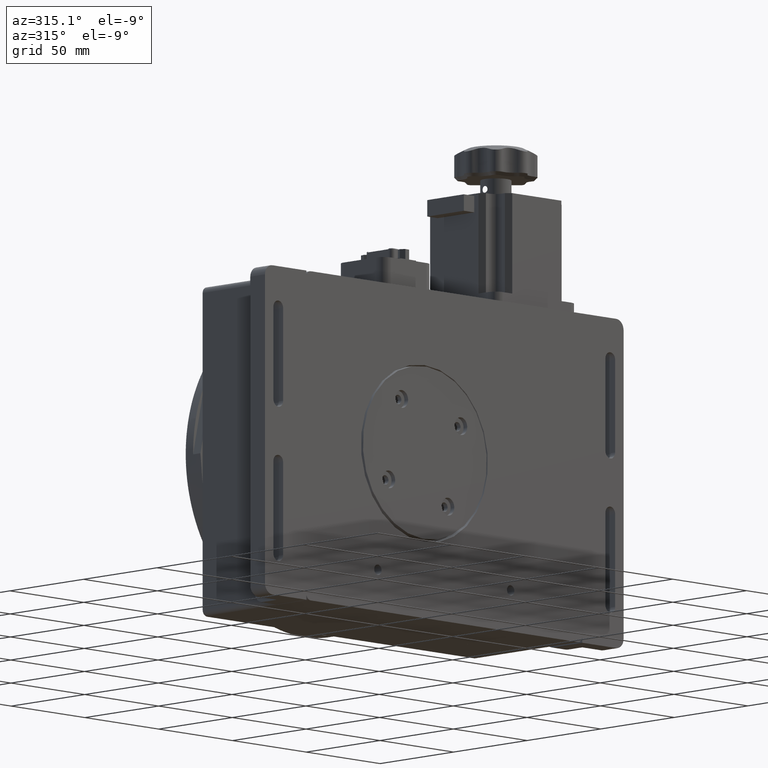
[diagram: clean part render]
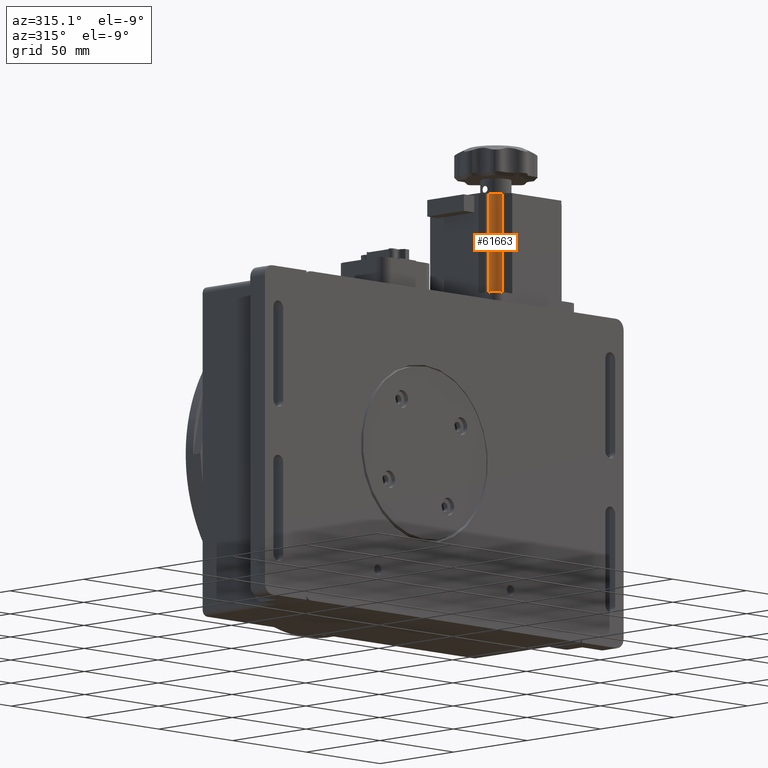
[diagram: same view with one face highlighted and labeled with its STEP entity id]
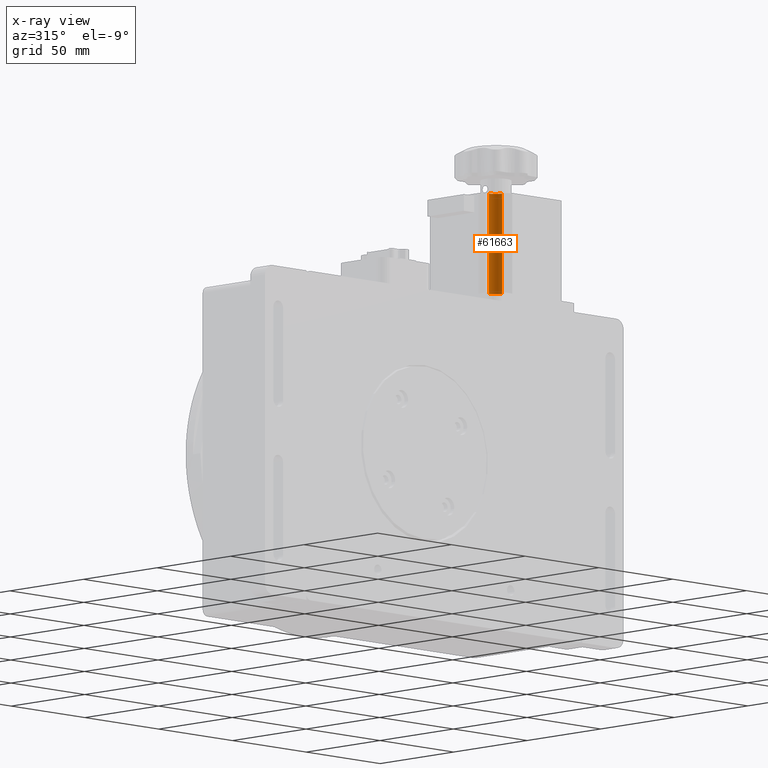
[diagram: x-ray of the same camera — body ghosted, the highlighted face saturated]
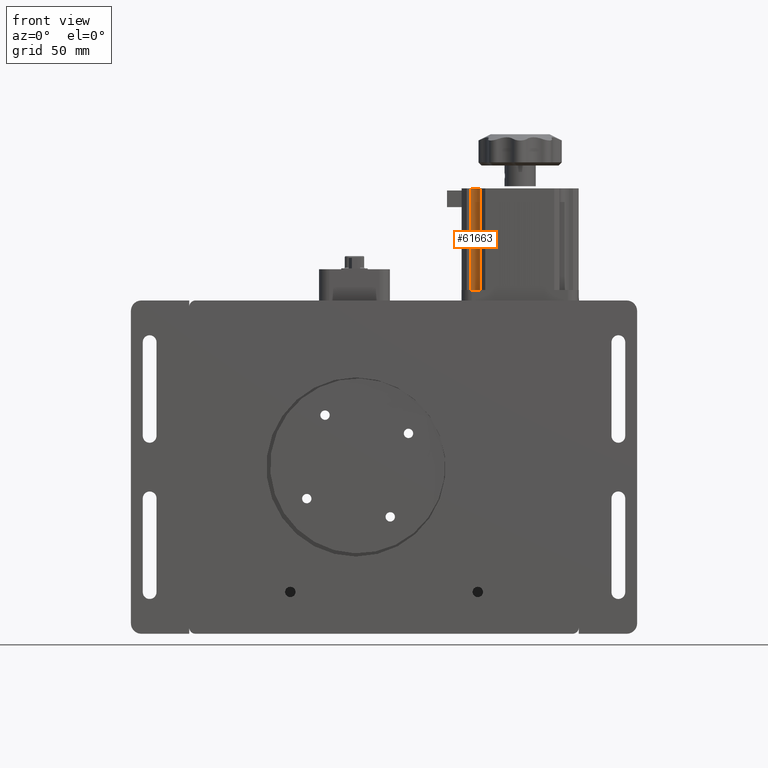
[diagram: same view with one face highlighted and labeled with its STEP entity id]
A machine part, auxiliary view. The second image highlights one B-rep face of the part: STEP entity #61663.
The next image is the same camera in x-ray: the body ghosted, the highlighted face saturated — about 0% of this face is hidden behind the body in this view.
A second angle (front view) of the same face is appended — the face is thin or edge-on in the first view.
In plain terms, the highlighted cylindrical surface (edge-blend (fillet) strip) has radius 4.5 mm, axis along (-0, 0, -1).
Its self-contained STEP definition (entity closure, byte-faithful):
#4035 = CYLINDRICAL_SURFACE ( 'NONE', #71215, 4.500000000000000900 ) ;
#4137 = CARTESIAN_POINT ( 'NONE',  ( 228.6641675121713300, 4.060652173870141500, 133.7999999999999500 ) ) ;
#14401 = EDGE_CURVE ( 'NONE', #19755, #100384, #67500, .T. ) ;
#14990 = VERTEX_POINT ( 'NONE', #4137 ) ;
#18340 = CIRCLE ( 'NONE', #80011, 4.500000000000000900 ) ;
#19158 = CARTESIAN_POINT ( 'NONE',  ( 228.6392789991501500, -0.4392789991501145900, 133.7999999999999500 ) ) ;
#19755 = VERTEX_POINT ( 'NONE', #106458 ) ;
#23094 = CARTESIAN_POINT ( 'NONE',  ( 228.6641675121713300, 4.060652173870141500, 133.7999999999999500 ) ) ;
#24968 = DIRECTION ( 'NONE',  ( -4.032665173805104700E-017, 1.832968605062175000E-016, -1.000000000000000000 ) ) ;
#25306 = DIRECTION ( 'NONE',  ( -0.005530780671404567300, -0.9999847051156156600, 0.0000000000000000000 ) ) ;
#27534 = DIRECTION ( 'NONE',  ( 0.005530780671404567300, 0.9999847051156156600, 0.0000000000000000000 ) ) ;
#28146 = LINE ( 'NONE', #23094, #92188 ) ;
#29718 = CARTESIAN_POINT ( 'NONE',  ( 233.1392101721702900, -0.4641675121714282600, 133.7999999999999500 ) ) ;
#30359 = AXIS2_PLACEMENT_3D ( 'NONE', #36105, #94490, #44462 ) ;
#31066 = DIRECTION ( 'NONE',  ( -4.032665173805104700E-017, 1.832968605062175300E-016, -1.000000000000000000 ) ) ;
#32800 = CARTESIAN_POINT ( 'NONE',  ( 233.1392101721702900, -0.4641675121714282600, 133.7999999999999500 ) ) ;
#36105 = CARTESIAN_POINT ( 'NONE',  ( 228.6392789991501500, -0.4392789991501180900, 85.00000000000000000 ) ) ;
#38725 = ORIENTED_EDGE ( 'NONE', *, *, #57227, .T. ) ;
#44462 = DIRECTION ( 'NONE',  ( 0.005530780671404567300, 0.9999847051156156600, 0.0000000000000000000 ) ) ;
#56362 = FACE_OUTER_BOUND ( 'NONE', #76221, .T. ) ;
#57227 = EDGE_CURVE ( 'NONE', #75027, #14990, #18340, .T. ) ;
#57325 = ORIENTED_EDGE ( 'NONE', *, *, #94194, .T. ) ;
#61663 = ADVANCED_FACE ( 'NONE', ( #56362 ), #4035, .F. ) ;
#62579 = ORIENTED_EDGE ( 'NONE', *, *, #14401, .F. ) ;
#66392 = DIRECTION ( 'NONE',  ( -4.032665173805104700E-017, 1.832968605062175300E-016, -1.000000000000000000 ) ) ;
#67500 = CIRCLE ( 'NONE', #30359, 4.500000000000000900 ) ;
#69786 = VECTOR ( 'NONE', #66392, 1000.000000000000000 ) ;
#71215 = AXIS2_PLACEMENT_3D ( 'NONE', #99426, #24968, #25306 ) ;
#73120 = ORIENTED_EDGE ( 'NONE', *, *, #76248, .F. ) ;
#75027 = VERTEX_POINT ( 'NONE', #29718 ) ;
#76221 = EDGE_LOOP ( 'NONE', ( #62579, #73120, #38725, #57325 ) ) ;
#76248 = EDGE_CURVE ( 'NONE', #75027, #19755, #92012, .T. ) ;
#77587 = DIRECTION ( 'NONE',  ( 4.032665173805104700E-017, -1.832968605062174800E-016, 1.000000000000000000 ) ) ;
#80011 = AXIS2_PLACEMENT_3D ( 'NONE', #19158, #77587, #27534 ) ;
#92012 = LINE ( 'NONE', #32800, #69786 ) ;
#92188 = VECTOR ( 'NONE', #31066, 1000.000000000000000 ) ;
#94194 = EDGE_CURVE ( 'NONE', #14990, #100384, #28146, .T. ) ;
#94490 = DIRECTION ( 'NONE',  ( 4.032665173805104700E-017, -1.832968605062174800E-016, 1.000000000000000000 ) ) ;
#96219 = CARTESIAN_POINT ( 'NONE',  ( 228.6641675121713300, 4.060652173870148700, 85.00000000000000000 ) ) ;
#99426 = CARTESIAN_POINT ( 'NONE',  ( 228.6392789991501500, -0.4392789991501145900, 133.7999999999999500 ) ) ;
#100384 = VERTEX_POINT ( 'NONE', #96219 ) ;
#106458 = CARTESIAN_POINT ( 'NONE',  ( 233.1392101721702900, -0.4641675121714212700, 85.00000000000000000 ) ) ;